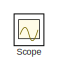
[diagram: root canvas - part 1/2, top left region]
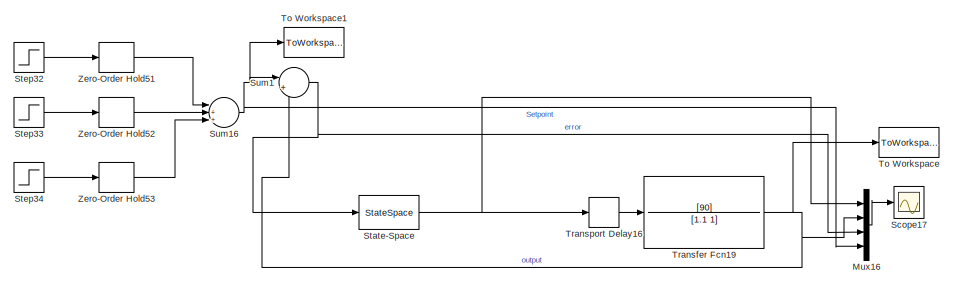
[diagram: root canvas - part 2/2, bottom right region]
MODEL slx_0103014fe907
KIND model
CONFIG AbsTol = auto
CONFIG EnableMultiTasking = on
CONFIG FixedStep = auto
CONFIG MaxStep = auto
CONFIG MinStep = auto
CONFIG RelTol = 1e-3
CONFIG SampleTimeConstraint = Unconstrained
CONFIG Solver = ode45
CONFIG SolverName = ode45
CONFIG StartTime = 0.0
CONFIG StopTime = 100
BLOCK [Mux] Mux16
  DisplayOption = bar
  Ports = [4, 1]
BLOCK [Scope] Scope
  Floating = off
  IOType = viewer
  NumInputPorts = 1
  Ports = []
  ScopeSpecificationString = C++SS(StrPVP('Location','[10, 249, 1930, 1239]'),StrPVP('Open','off'),MxPVP('AxesTitles',53,'struct(''axes1'',''%<SignalLabel>'',''axes2'',''%<SignalLabel>'',''axes3'',''%<SignalLabel>'',''axes4'',''%<SignalLabel>'',''axes5'',''%<SignalLabel>'')'),MxPVP('ScopeGraphics',56,'struct(''FigureColor'',''[0.5 0.5 0.5]'',''AxesColor'',''[0 0 0]'',''AxesTickColor'',''[1 1 1]'',''LineColors'',''[1 1 0;1 0 1...<+384ch>
BLOCK [Scope] Scope17
  Floating = off
  NumInputPorts = 1
  Ports = [1]
  ScopeSpecificationString = Simulink.scopes.TimeScopeBlockCfg('CurrentConfiguration', extmgr.ConfigurationSet(extmgr.Configuration('Core','General UI',true),extmgr.Configuration('Core','Source UI',true),extmgr.Configuration('Sources','WiredSimulink',true,'DataLoggingVariableName','ScopeData1'),extmgr.Configuration('Visuals','Time Domain',true,'SerializedDisplays',{struct('MinYLimReal','-37.46608','MaxYLimReal','81.94068','YL...<+1499ch>
BLOCK [StateSpace] State-Space
  A = K2.A
  B = K2.B
  C = K2.C
  D = K2.D
  InitialCondition = 0
  Ports = [1, 1]
BLOCK [Step] Step32
  After = 20
  SampleTime = 0.05
  Time = 70
BLOCK [Step] Step33
  After = 70
  SampleTime = 0.05
BLOCK [Step] Step34
  After = 40
  SampleTime = Ts
  Time = 40
BLOCK [Sum] Sum1
  IconShape = round
  InputSameDT = off
  Inputs = |+-
  OutDataTypeStr = Inherit: Inherit via internal rule
  Ports = [2, 1]
  SaturateOnIntegerOverflow = off
BLOCK [Sum] Sum16
  IconShape = round
  InputSameDT = off
  Inputs = |++-
  OutDataTypeStr = Inherit: Inherit via internal rule
  Ports = [3, 1]
  SaturateOnIntegerOverflow = off
BLOCK [ToWorkspace] To Workspace
  FixptAsFi = on
  MaxDataPoints = inf
  Ports = [1]
  SampleTime = -1
  Save2DSignal = 3-D array (concatenate along third dimension)
  SaveFormat = Timeseries
  VariableName = output
BLOCK [ToWorkspace] To Workspace1
  FixptAsFi = on
  MaxDataPoints = inf
  Ports = [1]
  SampleTime = -1
  Save2DSignal = 3-D array (concatenate along third dimension)
  SaveFormat = Timeseries
  VariableName = Setpoint
BLOCK [TransferFcn] Transfer Fcn19
  Denominator = [1.1 1]
  Numerator = [90]
BLOCK [TransportDelay] Transport Delay16
  DelayTime = 1.25
  Ports = [1, 1]
BLOCK [ZeroOrderHold] Zero-Order Hold51
  SampleTime = Ts
BLOCK [ZeroOrderHold] Zero-Order Hold52
  SampleTime = Ts
BLOCK [ZeroOrderHold] Zero-Order Hold53
  SampleTime = Ts
LINE Mux16:1 -> Scope17:1
NET State-Space:1 -> Mux16:1, Transport Delay16:1
LINE Step32:1 -> Zero-Order Hold51:1
LINE Step33:1 -> Zero-Order Hold52:1
LINE Step34:1 -> Zero-Order Hold53:1
NET Sum16:1 -> Mux16:4, Sum1:1, To Workspace1:1
NET Sum1:1 -> Mux16:3, State-Space:1
NET Transfer Fcn19:1 -> Mux16:2, Sum1:2, To Workspace:1
LINE Transport Delay16:1 -> Transfer Fcn19:1
LINE Zero-Order Hold51:1 -> Sum16:1
LINE Zero-Order Hold52:1 -> Sum16:2
LINE Zero-Order Hold53:1 -> Sum16:3
note: NET lines group one-source signal fan-out (src -> all destinations, sorted); 1:1 wires keep LINE
